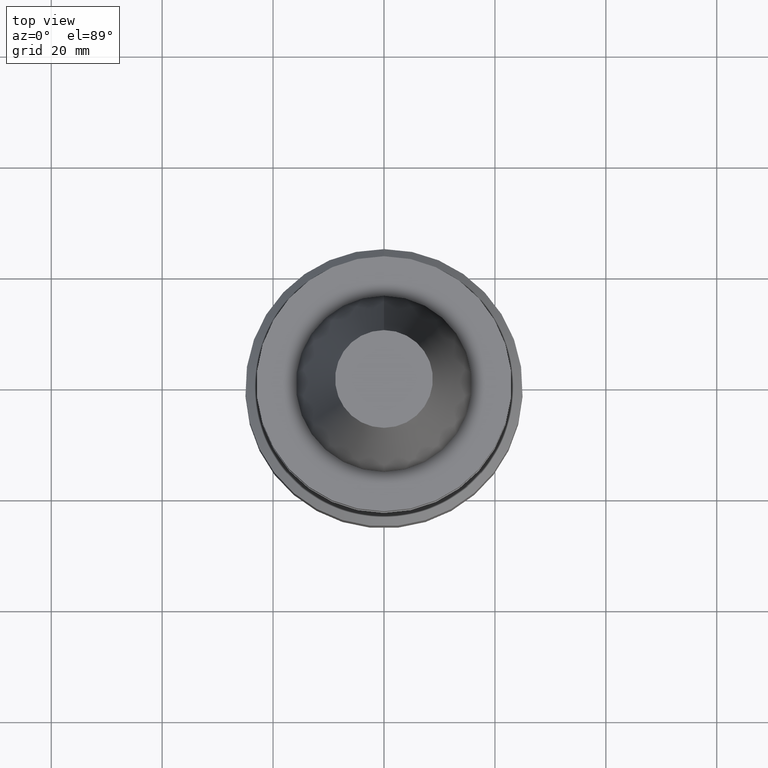
[diagram: clean part render]
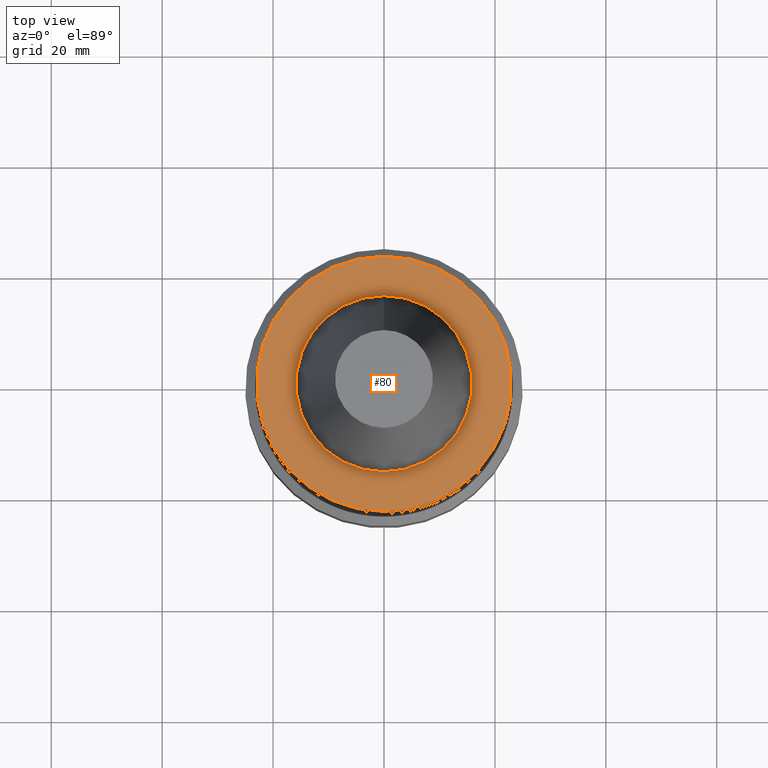
[diagram: same view with one face highlighted and labeled with its STEP entity id]
A machine part, top view. The second image highlights one B-rep face of the part: STEP entity #80.
In plain terms, the highlighted planar face has unit normal (-0, -0, 1).
Its self-contained STEP definition (entity closure, byte-faithful):
#80=ADVANCED_FACE('',(#104,#105),#106,.T.);
#104=FACE_OUTER_BOUND('',#144,.T.);
#105=FACE_BOUND('',#145,.T.);
#106=PLANE('',#146);
#144=EDGE_LOOP('',(#194));
#145=EDGE_LOOP('',(#195));
#146=AXIS2_PLACEMENT_3D('',#196,#197,#198);
#194=ORIENTED_EDGE('',*,*,#244,.F.);
#195=ORIENTED_EDGE('',*,*,#242,.T.);
#196=CARTESIAN_POINT('',(6.12323399573674E-017,19.4375000000006,-0.999999999999998));
#197=DIRECTION('',(-6.12323399573677E-017,-1.22464679914735E-016,1.0));
#198=DIRECTION('',(1.23259516440783E-032,-1.0,-1.22464679914735E-016));
#242=EDGE_CURVE('',#259,#259,#260,.T.);
#244=EDGE_CURVE('',#263,#263,#264,.T.);
#259=VERTEX_POINT('',#285);
#260=CIRCLE('',#286,15.8750000000011);
#263=VERTEX_POINT('',#289);
#264=CIRCLE('',#290,23.0);
#285=CARTESIAN_POINT('',(6.12323399573675E-017,15.8750000000011,-0.999999999999998));
#286=AXIS2_PLACEMENT_3D('',#315,#316,#317);
#289=CARTESIAN_POINT('',(6.12323399573674E-017,23.0,-0.999999999999997));
#290=AXIS2_PLACEMENT_3D('',#321,#322,#323);
#315=CARTESIAN_POINT('',(6.12323399573677E-017,1.22464679914735E-016,-1.0));
#316=DIRECTION('',(6.12323399573677E-017,1.22464679914735E-016,-1.0));
#317=DIRECTION('',(-1.23259516440783E-032,1.0,1.22464679914735E-016));
#321=CARTESIAN_POINT('',(6.12323399573677E-017,1.22464679914735E-016,-1.0));
#322=DIRECTION('',(6.12323399573677E-017,1.22464679914735E-016,-1.0));
#323=DIRECTION('',(-1.23259516440783E-032,1.0,1.22464679914735E-016));